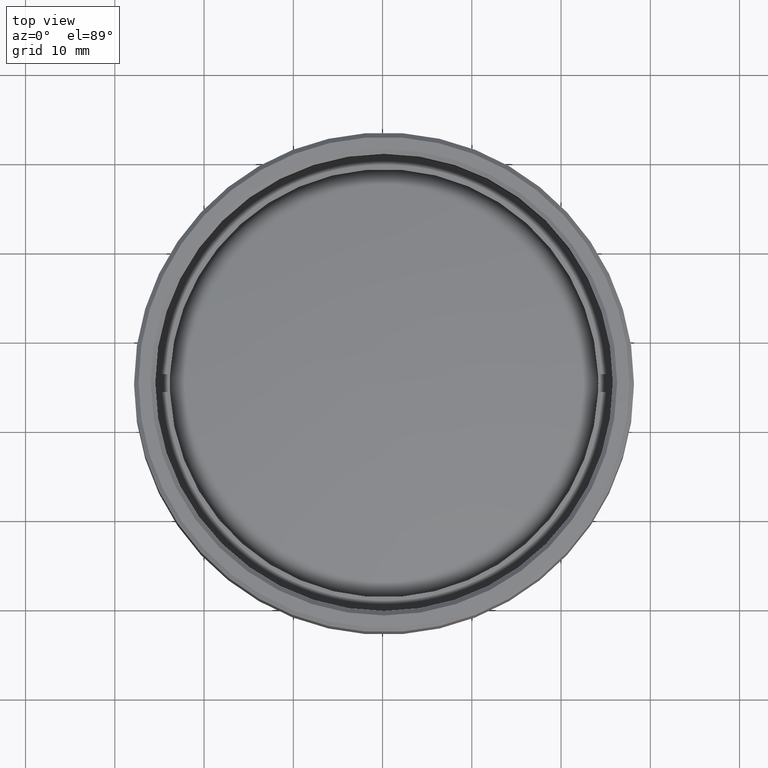
[diagram: clean part render]
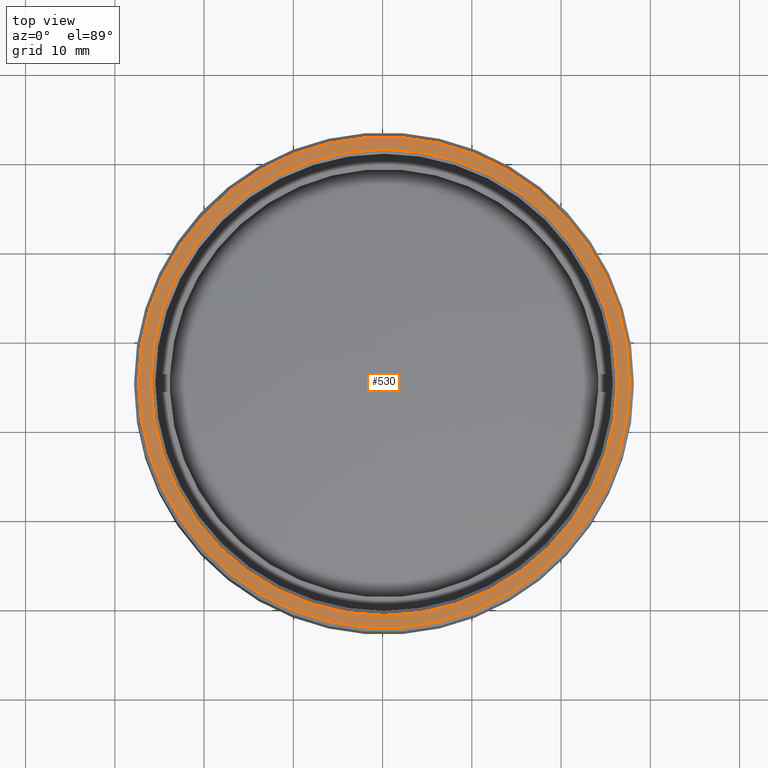
[diagram: same view with one face highlighted and labeled with its STEP entity id]
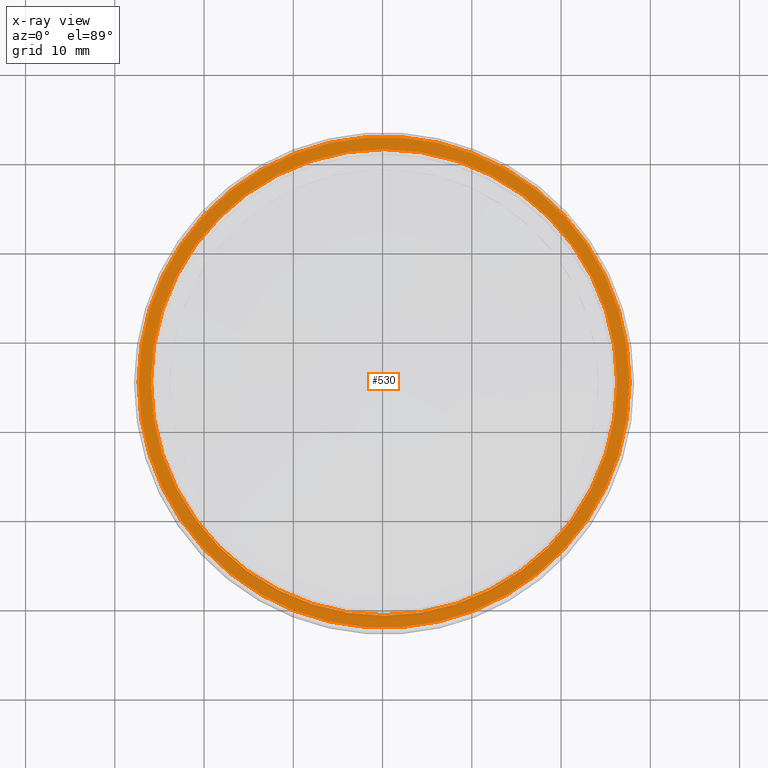
[diagram: x-ray of the same camera — body ghosted, the highlighted face saturated]
A machine part, top view. The second image highlights one B-rep face of the part: STEP entity #530.
The next image is the same camera in x-ray: the body ghosted, the highlighted face saturated — about 0% of this face is hidden behind the body in this view.
In plain terms, the highlighted planar face has unit normal (0, 0, 1).
Its self-contained STEP definition (entity closure, byte-faithful):
#25 = CARTESIAN_POINT ( 'NONE',  ( 26.12500000000000355, 0.000000000000000000, 21.50000000000000000 ) ) ;
#41 = DIRECTION ( 'NONE',  ( 1.000000000000000000, 0.000000000000000000, 0.000000000000000000 ) ) ;
#63 = EDGE_CURVE ( 'NONE', #615, #427, #640, .T. ) ;
#133 = ORIENTED_EDGE ( 'NONE', *, *, #959, .T. ) ;
#170 = VERTEX_POINT ( 'NONE', #25 ) ;
#210 = EDGE_LOOP ( 'NONE', ( #859, #401 ) ) ;
#310 = CIRCLE ( 'NONE', #1113, 26.12500000000000355 ) ;
#341 = ORIENTED_EDGE ( 'NONE', *, *, #1511, .T. ) ;
#379 = EDGE_CURVE ( 'NONE', #427, #615, #736, .T. ) ;
#401 = ORIENTED_EDGE ( 'NONE', *, *, #379, .T. ) ;
#427 = VERTEX_POINT ( 'NONE', #705 ) ;
#528 = PLANE ( 'NONE',  #1373 ) ;
#530 = ADVANCED_FACE ( 'NONE', ( #994, #1747 ), #528, .T. ) ;
#615 = VERTEX_POINT ( 'NONE', #920 ) ;
#640 = CIRCLE ( 'NONE', #1627, 27.49999999999998579 ) ;
#665 = DIRECTION ( 'NONE',  ( 1.000000000000000000, 0.000000000000000000, 0.000000000000000000 ) ) ;
#675 = VERTEX_POINT ( 'NONE', #899 ) ;
#695 = CARTESIAN_POINT ( 'NONE',  ( 0.000000000000000000, 0.000000000000000000, 21.50000000000000000 ) ) ;
#705 = CARTESIAN_POINT ( 'NONE',  ( 27.49999999999998579, 3.398394867633904700E-15, 21.50000000000000000 ) ) ;
#736 = CIRCLE ( 'NONE', #1353, 27.49999999999998579 ) ;
#771 = CARTESIAN_POINT ( 'NONE',  ( 0.000000000000000000, 0.000000000000000000, 21.50000000000000000 ) ) ;
#859 = ORIENTED_EDGE ( 'NONE', *, *, #63, .T. ) ;
#899 = CARTESIAN_POINT ( 'NONE',  ( -26.12500000000000355, 3.199389762772460873E-15, 21.50000000000000000 ) ) ;
#920 = CARTESIAN_POINT ( 'NONE',  ( -27.49999999999998579, 0.000000000000000000, 21.50000000000000000 ) ) ;
#936 = DIRECTION ( 'NONE',  ( 1.000000000000000000, 0.000000000000000000, 0.000000000000000000 ) ) ;
#959 = EDGE_CURVE ( 'NONE', #675, #170, #1225, .T. ) ;
#994 = FACE_BOUND ( 'NONE', #1477, .T. ) ;
#1094 = CARTESIAN_POINT ( 'NONE',  ( 0.000000000000000000, 0.000000000000000000, 21.50000000000000000 ) ) ;
#1113 = AXIS2_PLACEMENT_3D ( 'NONE', #1228, #1360, #1635 ) ;
#1225 = CIRCLE ( 'NONE', #1280, 26.12500000000000355 ) ;
#1228 = CARTESIAN_POINT ( 'NONE',  ( 0.000000000000000000, 0.000000000000000000, 21.50000000000000000 ) ) ;
#1230 = DIRECTION ( 'NONE',  ( 0.000000000000000000, 0.000000000000000000, 1.000000000000000000 ) ) ;
#1280 = AXIS2_PLACEMENT_3D ( 'NONE', #771, #1436, #41 ) ;
#1353 = AXIS2_PLACEMENT_3D ( 'NONE', #695, #1509, #665 ) ;
#1360 = DIRECTION ( 'NONE',  ( -0.000000000000000000, -0.000000000000000000, -1.000000000000000000 ) ) ;
#1373 = AXIS2_PLACEMENT_3D ( 'NONE', #1094, #1230, #1613 ) ;
#1436 = DIRECTION ( 'NONE',  ( -0.000000000000000000, -0.000000000000000000, -1.000000000000000000 ) ) ;
#1451 = CARTESIAN_POINT ( 'NONE',  ( 0.000000000000000000, 0.000000000000000000, 21.50000000000000000 ) ) ;
#1456 = DIRECTION ( 'NONE',  ( 0.000000000000000000, 0.000000000000000000, 1.000000000000000000 ) ) ;
#1477 = EDGE_LOOP ( 'NONE', ( #341, #133 ) ) ;
#1509 = DIRECTION ( 'NONE',  ( 0.000000000000000000, 0.000000000000000000, 1.000000000000000000 ) ) ;
#1511 = EDGE_CURVE ( 'NONE', #170, #675, #310, .T. ) ;
#1613 = DIRECTION ( 'NONE',  ( 1.000000000000000000, 0.000000000000000000, -0.000000000000000000 ) ) ;
#1627 = AXIS2_PLACEMENT_3D ( 'NONE', #1451, #1456, #936 ) ;
#1635 = DIRECTION ( 'NONE',  ( 1.000000000000000000, 0.000000000000000000, 0.000000000000000000 ) ) ;
#1747 = FACE_OUTER_BOUND ( 'NONE', #210, .T. ) ;